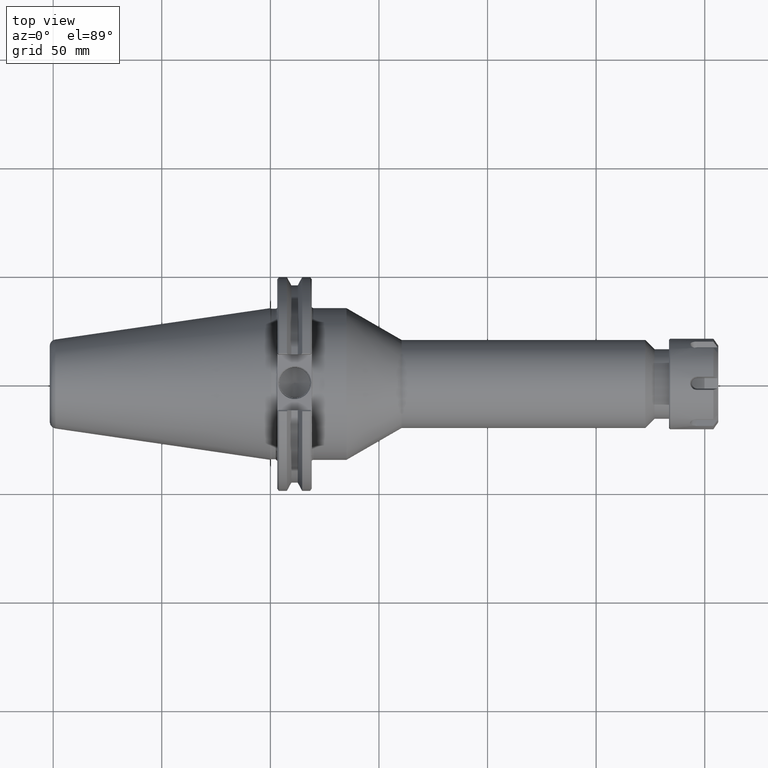
[diagram: clean part render]
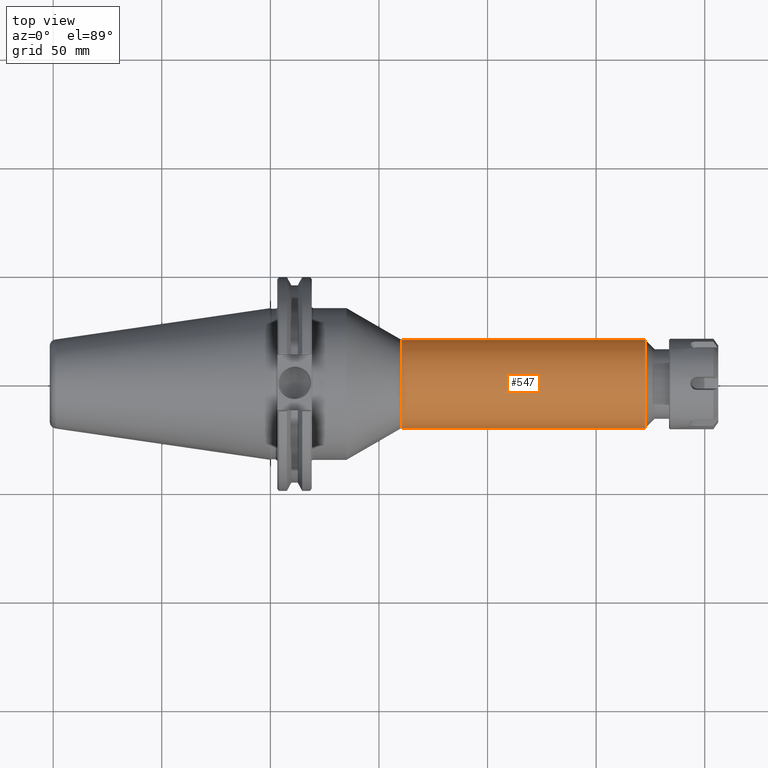
[diagram: same view with one face highlighted and labeled with its STEP entity id]
A machine part, top view. The second image highlights one B-rep face of the part: STEP entity #547.
In plain terms, the highlighted cylindrical surface (bore or boss wall) has radius 20.2565 mm, axis along (1, 0, 0).
Its self-contained STEP definition (entity closure, byte-faithful):
#513=CARTESIAN_POINT('',(2.380259341371026,0.7975,0.0));
#514=VERTEX_POINT('',#513);
#515=CARTESIAN_POINT('',(2.380259341371026,0.0,0.0));
#516=DIRECTION('',(1.0,0.0,0.0));
#517=DIRECTION('',(0.0,1.0,0.0));
#518=AXIS2_PLACEMENT_3D('',#515,#516,#517);
#519=CIRCLE('',#518,0.7975);
#520=EDGE_CURVE('',#514,#514,#519,.T.);
#528=CARTESIAN_POINT('',(4.588340300606772,0.0,0.0));
#529=DIRECTION('',(1.0,0.0,0.0));
#530=DIRECTION('',(0.0,1.0,0.0));
#531=AXIS2_PLACEMENT_3D('',#528,#529,#530);
#532=CYLINDRICAL_SURFACE('',#531,0.7975);
#533=CARTESIAN_POINT('',(6.79642125984252,0.797500000000001,0.0));
#534=VERTEX_POINT('',#533);
#535=CARTESIAN_POINT('',(6.79642125984252,0.0,0.0));
#536=DIRECTION('',(1.0,0.0,0.0));
#537=DIRECTION('',(0.0,1.0,0.0));
#538=AXIS2_PLACEMENT_3D('',#535,#536,#537);
#539=CIRCLE('',#538,0.797500000000001);
#540=EDGE_CURVE('',#534,#534,#539,.T.);
#541=ORIENTED_EDGE('',*,*,#540,.F.);
#542=EDGE_LOOP('',(#541));
#543=FACE_OUTER_BOUND('',#542,.T.);
#544=ORIENTED_EDGE('',*,*,#520,.T.);
#545=EDGE_LOOP('',(#544));
#546=FACE_BOUND('',#545,.T.);
#547=ADVANCED_FACE('',(#543,#546),#532,.T.);